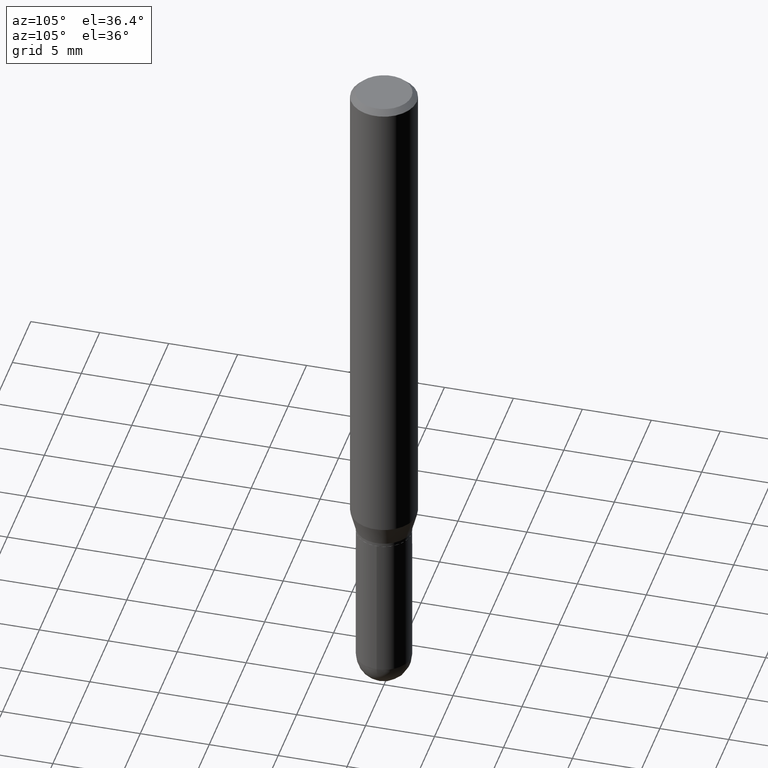
[diagram: clean part render]
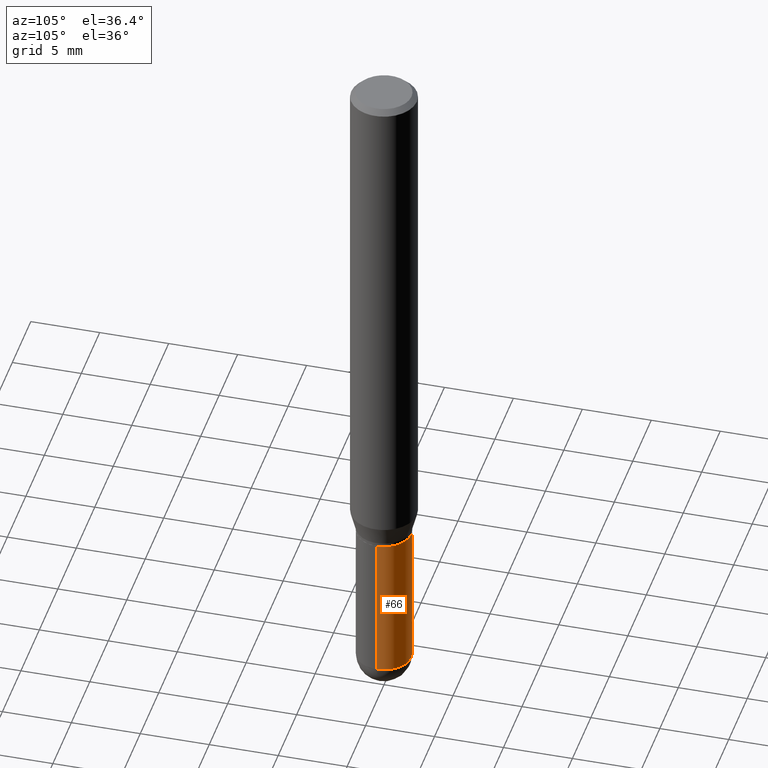
[diagram: same view with one face highlighted and labeled with its STEP entity id]
A machine part, auxiliary view. The second image highlights one B-rep face of the part: STEP entity #66.
In plain terms, the highlighted cylindrical surface (edge-blend (fillet) strip) has radius 1.9837 mm, axis along (-0, 0, 1).
Its self-contained STEP definition (entity closure, byte-faithful):
#7 = VERTEX_POINT ( 'NONE', #489 ) ;
#11 = VECTOR ( 'NONE', #499, 39.37007874015748143 ) ;
#17 = CIRCLE ( 'NONE', #302, 0.07810000000000000275 ) ;
#36 = CARTESIAN_POINT ( 'NONE',  ( 0.07810000000000000275, -6.519119381820976762E-15, -1.921900000000000164 ) ) ;
#66 = ADVANCED_FACE ( 'NONE', ( #330 ), #323, .T. ) ;
#73 = EDGE_CURVE ( 'NONE', #400, #7, #494, .T. ) ;
#74 = DIRECTION ( 'NONE',  ( 1.000000000000000000, -6.982962677686266711E-15, 0.000000000000000000 ) ) ;
#80 = ORIENTED_EDGE ( 'NONE', *, *, #296, .T. ) ;
#89 = EDGE_CURVE ( 'NONE', #354, #347, #299, .T. ) ;
#103 = CIRCLE ( 'NONE', #369, 0.07810000000000000275 ) ;
#118 = ORIENTED_EDGE ( 'NONE', *, *, #279, .T. ) ;
#143 = CIRCLE ( 'NONE', #366, 0.07810000000000000275 ) ;
#149 = DIRECTION ( 'NONE',  ( 1.000000000000000000, -6.982962677686266711E-15, 0.000000000000000000 ) ) ;
#155 = VERTEX_POINT ( 'NONE', #421 ) ;
#188 = CARTESIAN_POINT ( 'NONE',  ( 3.668203209277704895E-29, -5.237222008264718177E-15, -1.500000000000000222 ) ) ;
#191 = CARTESIAN_POINT ( 'NONE',  ( -0.07810000000000000275, -5.418816120065042244E-15, -1.921900000000000164 ) ) ;
#212 = CARTESIAN_POINT ( 'NONE',  ( -0.07810000000000000275, 5.549338766286382647E-16, -3.841688305489081275E-30 ) ) ;
#223 = DIRECTION ( 'NONE',  ( -2.445468806185136597E-29, 3.491481338843145583E-15, 1.000000000000000000 ) ) ;
#226 = CARTESIAN_POINT ( 'NONE',  ( -0.07810000000000000275, -5.418816120065042244E-15, -1.500000000000000222 ) ) ;
#257 = DIRECTION ( 'NONE',  ( -2.445468806185136877E-29, 3.491481338843145188E-15, 1.000000000000000000 ) ) ;
#267 = ORIENTED_EDGE ( 'NONE', *, *, #73, .F. ) ;
#272 = DIRECTION ( 'NONE',  ( -2.445468806185136597E-29, 3.491481338843145583E-15, 1.000000000000000000 ) ) ;
#275 = EDGE_LOOP ( 'NONE', ( #118, #377, #367, #267, #80 ) ) ;
#276 = AXIS2_PLACEMENT_3D ( 'NONE', #283, #441, #339 ) ;
#279 = EDGE_CURVE ( 'NONE', #155, #354, #17, .T. ) ;
#283 = CARTESIAN_POINT ( 'NONE',  ( 0.000000000000000000, 0.000000000000000000, 0.000000000000000000 ) ) ;
#296 = EDGE_CURVE ( 'NONE', #400, #155, #143, .T. ) ;
#299 = LINE ( 'NONE', #212, #411 ) ;
#302 = AXIS2_PLACEMENT_3D ( 'NONE', #349, #272, #74 ) ;
#323 = CYLINDRICAL_SURFACE ( 'NONE', #276, 0.07810000000000000275 ) ;
#330 = FACE_OUTER_BOUND ( 'NONE', #275, .T. ) ;
#331 = CARTESIAN_POINT ( 'NONE',  ( 0.07810000000000000275, -5.453693851272974364E-16, 3.808294061896625703E-30 ) ) ;
#339 = DIRECTION ( 'NONE',  ( 1.000000000000000000, -6.982962677686266711E-15, 4.876176775795935232E-29 ) ) ;
#347 = VERTEX_POINT ( 'NONE', #226 ) ;
#349 = CARTESIAN_POINT ( 'NONE',  ( 4.699946498607214373E-29, -6.710277985122641264E-15, -1.921900000000000164 ) ) ;
#354 = VERTEX_POINT ( 'NONE', #191 ) ;
#366 = AXIS2_PLACEMENT_3D ( 'NONE', #472, #223, #384 ) ;
#367 = ORIENTED_EDGE ( 'NONE', *, *, #414, .F. ) ;
#369 = AXIS2_PLACEMENT_3D ( 'NONE', #188, #508, #149 ) ;
#377 = ORIENTED_EDGE ( 'NONE', *, *, #89, .T. ) ;
#384 = DIRECTION ( 'NONE',  ( 1.000000000000000000, -6.982962677686266711E-15, 0.000000000000000000 ) ) ;
#400 = VERTEX_POINT ( 'NONE', #36 ) ;
#411 = VECTOR ( 'NONE', #257, 39.37007874015748143 ) ;
#414 = EDGE_CURVE ( 'NONE', #7, #347, #103, .T. ) ;
#421 = CARTESIAN_POINT ( 'NONE',  ( 5.453693851273441764E-16, 0.07809999999999325815, -1.921900000000000386 ) ) ;
#441 = DIRECTION ( 'NONE',  ( -2.445468806185136597E-29, 3.491481338843145583E-15, 1.000000000000000000 ) ) ;
#472 = CARTESIAN_POINT ( 'NONE',  ( 4.699946498607214373E-29, -6.710277985122641264E-15, -1.921900000000000164 ) ) ;
#489 = CARTESIAN_POINT ( 'NONE',  ( 0.07810000000000000275, -5.782591393392015613E-15, -1.500000000000000222 ) ) ;
#494 = LINE ( 'NONE', #331, #11 ) ;
#499 = DIRECTION ( 'NONE',  ( -2.445468806185136877E-29, 3.491481338843145188E-15, 1.000000000000000000 ) ) ;
#508 = DIRECTION ( 'NONE',  ( -2.445468806185136597E-29, 3.491481338843145583E-15, 1.000000000000000000 ) ) ;